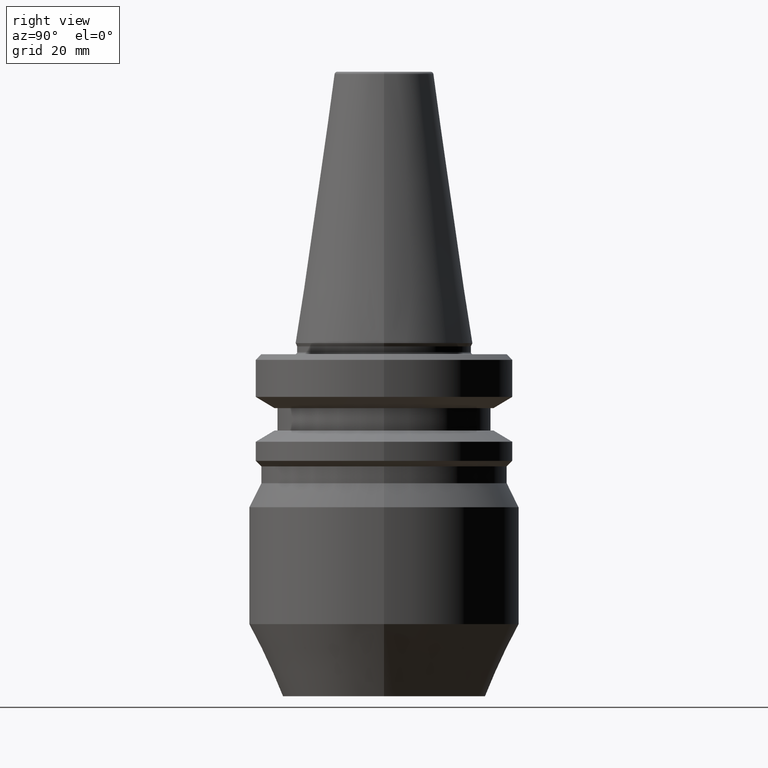
[diagram: clean part render]
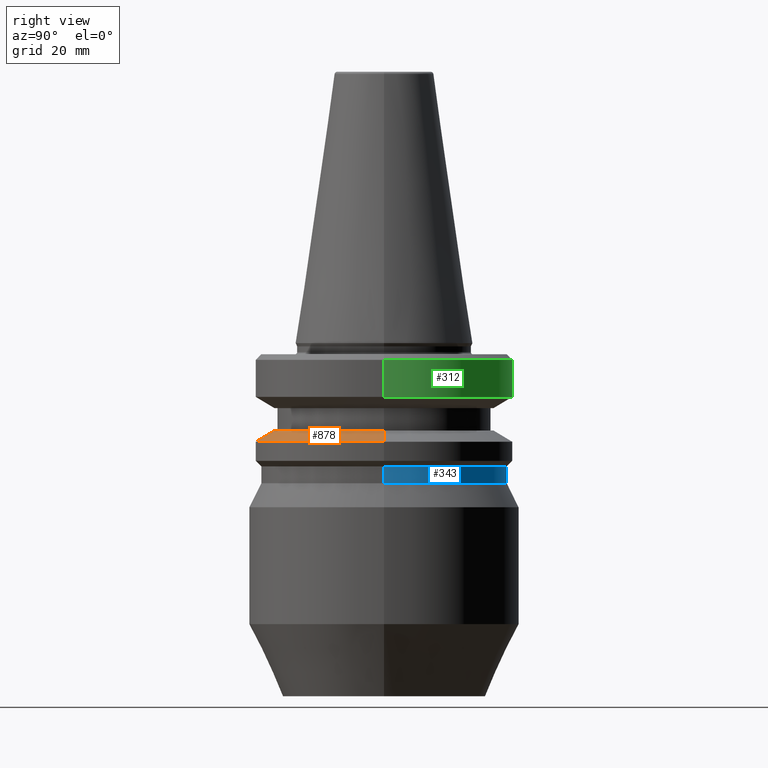
[diagram: same view with three faces highlighted in distinct colors, each labeled with its STEP entity id]
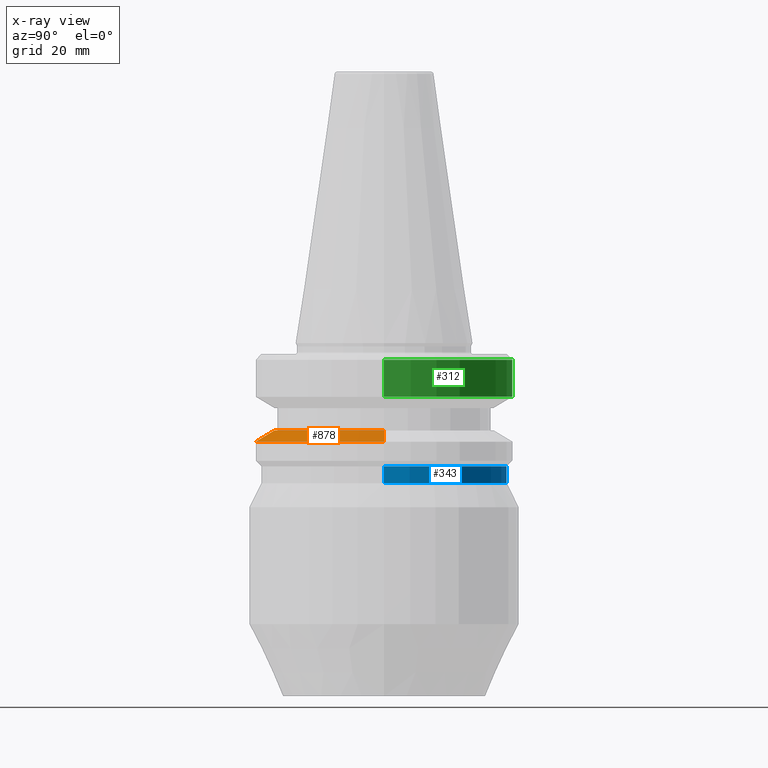
[diagram: x-ray of the same camera — body ghosted, the three highlighted faces saturated]
A machine part, right view with three faces highlighted in distinct colors.
The next image is the same camera in x-ray (body ghosted, the three faces saturated) — at least one of them is partly hidden behind the body in this view.
Their STEP definitions:

[orange] entity #878 — the highlighted conical surface has half-angle 60 deg.
#8 = DIRECTION ( 'NONE',  ( 1.000000000000000000, 0.0000000000000000000, 0.0000000000000000000 ) ) ;
#94 = AXIS2_PLACEMENT_3D ( 'NONE', #138, #861, #352 ) ;
#106 = LINE ( 'NONE', #939, #511 ) ;
#110 = ORIENTED_EDGE ( 'NONE', *, *, #306, .F. ) ;
#111 = CARTESIAN_POINT ( 'NONE',  ( -23.00000000000002100, 0.0000000000000000000, -17.59988266494572100 ) ) ;
#138 = CARTESIAN_POINT ( 'NONE',  ( 0.0000000000000000000, 0.0000000000000000000, -17.59988266494572100 ) ) ;
#142 = AXIS2_PLACEMENT_3D ( 'NONE', #322, #393, #8 ) ;
#254 = DIRECTION ( 'NONE',  ( -0.8660254037844372600, 0.0000000000000000000, -0.5000000000000024400 ) ) ;
#286 = EDGE_CURVE ( 'NONE', #800, #884, #756, .T. ) ;
#306 = EDGE_CURVE ( 'NONE', #582, #820, #328, .T. ) ;
#314 = EDGE_CURVE ( 'NONE', #820, #884, #106, .T. ) ;
#316 = DIRECTION ( 'NONE',  ( -1.000000000000000000, 0.0000000000000000000, 0.0000000000000000000 ) ) ;
#322 = CARTESIAN_POINT ( 'NONE',  ( 0.0000000000000000000, 0.0000000000000000000, -15.59999999999983600 ) ) ;
#328 = CIRCLE ( 'NONE', #142, 19.53610161513752500 ) ;
#334 = CARTESIAN_POINT ( 'NONE',  ( 19.53610161513752500, 2.604585034559237900E-015, -15.59999999999983600 ) ) ;
#352 = DIRECTION ( 'NONE',  ( 1.000000000000000000, 0.0000000000000000000, 0.0000000000000000000 ) ) ;
#373 = ORIENTED_EDGE ( 'NONE', *, *, #286, .T. ) ;
#393 = DIRECTION ( 'NONE',  ( -0.0000000000000000000, -0.0000000000000000000, 1.000000000000000000 ) ) ;
#405 = CARTESIAN_POINT ( 'NONE',  ( -19.53610161513752500, 0.0000000000000000000, -15.59999999999983600 ) ) ;
#407 = LINE ( 'NONE', #111, #589 ) ;
#511 = VECTOR ( 'NONE', #874, 1000.000000000000000 ) ;
#535 = ORIENTED_EDGE ( 'NONE', *, *, #314, .F. ) ;
#582 = VERTEX_POINT ( 'NONE', #405 ) ;
#589 = VECTOR ( 'NONE', #254, 1000.000000000000000 ) ;
#678 = CONICAL_SURFACE ( 'NONE', #754, 23.00000000000002100, 1.047197551196595000 ) ;
#689 = EDGE_LOOP ( 'NONE', ( #535, #110, #972, #373 ) ) ;
#694 = CARTESIAN_POINT ( 'NONE',  ( 23.00000000000002100, 0.0000000000000000000, -17.59988266494572100 ) ) ;
#714 = DIRECTION ( 'NONE',  ( 0.0000000000000000000, 0.0000000000000000000, -1.000000000000000000 ) ) ;
#730 = FACE_OUTER_BOUND ( 'NONE', #689, .T. ) ;
#754 = AXIS2_PLACEMENT_3D ( 'NONE', #929, #714, #316 ) ;
#756 = CIRCLE ( 'NONE', #94, 23.00000000000002100 ) ;
#800 = VERTEX_POINT ( 'NONE', #806 ) ;
#806 = CARTESIAN_POINT ( 'NONE',  ( -23.00000000000002100, 2.816687638038915100E-015, -17.59988266494572100 ) ) ;
#820 = VERTEX_POINT ( 'NONE', #334 ) ;
#861 = DIRECTION ( 'NONE',  ( -0.0000000000000000000, -0.0000000000000000000, 1.000000000000000000 ) ) ;
#874 = DIRECTION ( 'NONE',  ( 0.8660254037844372600, 1.060575238724905200E-016, -0.5000000000000024400 ) ) ;
#878 = ADVANCED_FACE ( 'NONE', ( #730 ), #678, .T. ) ;
#884 = VERTEX_POINT ( 'NONE', #694 ) ;
#929 = CARTESIAN_POINT ( 'NONE',  ( 0.0000000000000000000, 0.0000000000000000000, -17.59988266494572100 ) ) ;
#939 = CARTESIAN_POINT ( 'NONE',  ( 23.00000000000002100, 2.816687638038915100E-015, -17.59988266494572100 ) ) ;
#972 = ORIENTED_EDGE ( 'NONE', *, *, #974, .T. ) ;
#974 = EDGE_CURVE ( 'NONE', #582, #800, #407, .T. ) ;

[blue] entity #343 — the highlighted cylindrical surface (partial cylindrical patch) has radius 22 mm, axis along (-0, -0, 1).
#52 = DIRECTION ( 'NONE',  ( 1.000000000000000000, 0.0000000000000000000, 0.0000000000000000000 ) ) ;
#67 = CIRCLE ( 'NONE', #96, 22.00000000000013100 ) ;
#76 = FACE_OUTER_BOUND ( 'NONE', #904, .T. ) ;
#96 = AXIS2_PLACEMENT_3D ( 'NONE', #908, #387, #886 ) ;
#132 = AXIS2_PLACEMENT_3D ( 'NONE', #136, #1006, #52 ) ;
#136 = CARTESIAN_POINT ( 'NONE',  ( 0.0000000000000000000, 0.0000000000000000000, 80.11315735852554100 ) ) ;
#157 = CARTESIAN_POINT ( 'NONE',  ( 22.00000000000013100, 0.0000000000000000000, 80.11315735852554100 ) ) ;
#178 = CARTESIAN_POINT ( 'NONE',  ( -22.00000000000013100, 2.694222958124193000E-015, -21.99999999999979700 ) ) ;
#193 = AXIS2_PLACEMENT_3D ( 'NONE', #220, #363, #898 ) ;
#198 = VECTOR ( 'NONE', #941, 1000.000000000000000 ) ;
#204 = EDGE_CURVE ( 'NONE', #538, #323, #552, .T. ) ;
#220 = CARTESIAN_POINT ( 'NONE',  ( 0.0000000000000000000, 0.0000000000000000000, -24.99999999999968700 ) ) ;
#244 = CYLINDRICAL_SURFACE ( 'NONE', #132, 22.00000000000013100 ) ;
#274 = VECTOR ( 'NONE', #640, 1000.000000000000000 ) ;
#323 = VERTEX_POINT ( 'NONE', #508 ) ;
#343 = ADVANCED_FACE ( 'NONE', ( #76 ), #244, .T. ) ;
#363 = DIRECTION ( 'NONE',  ( -0.0000000000000000000, -0.0000000000000000000, 1.000000000000000000 ) ) ;
#387 = DIRECTION ( 'NONE',  ( -0.0000000000000000000, -0.0000000000000000000, 1.000000000000000000 ) ) ;
#435 = EDGE_CURVE ( 'NONE', #323, #575, #685, .T. ) ;
#508 = CARTESIAN_POINT ( 'NONE',  ( -22.00000000000013100, 0.0000000000000000000, -24.99999999999968700 ) ) ;
#523 = CARTESIAN_POINT ( 'NONE',  ( 22.00000000000013100, 0.0000000000000000000, -21.99999999999979700 ) ) ;
#538 = VERTEX_POINT ( 'NONE', #743 ) ;
#552 = CIRCLE ( 'NONE', #193, 22.00000000000013100 ) ;
#564 = ORIENTED_EDGE ( 'NONE', *, *, #204, .T. ) ;
#575 = VERTEX_POINT ( 'NONE', #178 ) ;
#580 = ORIENTED_EDGE ( 'NONE', *, *, #590, .F. ) ;
#590 = EDGE_CURVE ( 'NONE', #538, #744, #610, .T. ) ;
#610 = LINE ( 'NONE', #157, #198 ) ;
#640 = DIRECTION ( 'NONE',  ( -0.0000000000000000000, -0.0000000000000000000, 1.000000000000000000 ) ) ;
#654 = ORIENTED_EDGE ( 'NONE', *, *, #919, .F. ) ;
#663 = CARTESIAN_POINT ( 'NONE',  ( -22.00000000000013100, 2.694222958124193000E-015, 80.11315735852554100 ) ) ;
#685 = LINE ( 'NONE', #663, #274 ) ;
#743 = CARTESIAN_POINT ( 'NONE',  ( 22.00000000000013100, 2.816687638038805900E-015, -24.99999999999968700 ) ) ;
#744 = VERTEX_POINT ( 'NONE', #523 ) ;
#886 = DIRECTION ( 'NONE',  ( 1.000000000000000000, 0.0000000000000000000, 0.0000000000000000000 ) ) ;
#898 = DIRECTION ( 'NONE',  ( 1.000000000000000000, 0.0000000000000000000, 0.0000000000000000000 ) ) ;
#904 = EDGE_LOOP ( 'NONE', ( #564, #1007, #654, #580 ) ) ;
#908 = CARTESIAN_POINT ( 'NONE',  ( 0.0000000000000000000, 0.0000000000000000000, -21.99999999999979700 ) ) ;
#919 = EDGE_CURVE ( 'NONE', #744, #575, #67, .T. ) ;
#941 = DIRECTION ( 'NONE',  ( -0.0000000000000000000, -0.0000000000000000000, 1.000000000000000000 ) ) ;
#1006 = DIRECTION ( 'NONE',  ( -0.0000000000000000000, -0.0000000000000000000, 1.000000000000000000 ) ) ;
#1007 = ORIENTED_EDGE ( 'NONE', *, *, #435, .T. ) ;

[green] entity #312 — the highlighted cylindrical surface (partial cylindrical patch) has radius 23 mm, axis along (-0, -0, 1).
#19 = DIRECTION ( 'NONE',  ( 1.000000000000000000, 0.0000000000000000000, 0.0000000000000000000 ) ) ;
#34 = EDGE_LOOP ( 'NONE', ( #269, #571, #444, #601 ) ) ;
#63 = CARTESIAN_POINT ( 'NONE',  ( -23.00000000000002100, 2.816687638038914700E-015, -9.600117335054614300 ) ) ;
#79 = AXIS2_PLACEMENT_3D ( 'NONE', #643, #169, #19 ) ;
#81 = CARTESIAN_POINT ( 'NONE',  ( 23.00000000000002100, 0.0000000000000000000, 80.11315735852554100 ) ) ;
#83 = CARTESIAN_POINT ( 'NONE',  ( -23.00000000000002100, 2.816687638038915100E-015, -2.999999999999891600 ) ) ;
#128 = CIRCLE ( 'NONE', #79, 23.00000000000002100 ) ;
#148 = VERTEX_POINT ( 'NONE', #728 ) ;
#153 = AXIS2_PLACEMENT_3D ( 'NONE', #276, #494, #726 ) ;
#169 = DIRECTION ( 'NONE',  ( -0.0000000000000000000, -0.0000000000000000000, 1.000000000000000000 ) ) ;
#269 = ORIENTED_EDGE ( 'NONE', *, *, #946, .T. ) ;
#276 = CARTESIAN_POINT ( 'NONE',  ( 0.0000000000000000000, 0.0000000000000000000, 80.11315735852554100 ) ) ;
#281 = DIRECTION ( 'NONE',  ( -0.0000000000000000000, -0.0000000000000000000, 1.000000000000000000 ) ) ;
#294 = EDGE_CURVE ( 'NONE', #341, #600, #128, .T. ) ;
#298 = FACE_OUTER_BOUND ( 'NONE', #34, .T. ) ;
#312 = ADVANCED_FACE ( 'NONE', ( #298 ), #910, .T. ) ;
#341 = VERTEX_POINT ( 'NONE', #662 ) ;
#416 = EDGE_CURVE ( 'NONE', #651, #600, #534, .T. ) ;
#444 = ORIENTED_EDGE ( 'NONE', *, *, #294, .F. ) ;
#461 = VECTOR ( 'NONE', #281, 1000.000000000000000 ) ;
#488 = LINE ( 'NONE', #81, #461 ) ;
#494 = DIRECTION ( 'NONE',  ( -0.0000000000000000000, -0.0000000000000000000, 1.000000000000000000 ) ) ;
#530 = AXIS2_PLACEMENT_3D ( 'NONE', #996, #928, #840 ) ;
#534 = LINE ( 'NONE', #650, #912 ) ;
#571 = ORIENTED_EDGE ( 'NONE', *, *, #416, .T. ) ;
#600 = VERTEX_POINT ( 'NONE', #83 ) ;
#601 = ORIENTED_EDGE ( 'NONE', *, *, #671, .F. ) ;
#643 = CARTESIAN_POINT ( 'NONE',  ( 0.0000000000000000000, 0.0000000000000000000, -2.999999999999891600 ) ) ;
#650 = CARTESIAN_POINT ( 'NONE',  ( -23.00000000000002100, 2.816687638038915100E-015, 80.11315735852554100 ) ) ;
#651 = VERTEX_POINT ( 'NONE', #63 ) ;
#662 = CARTESIAN_POINT ( 'NONE',  ( 23.00000000000002100, 0.0000000000000000000, -2.999999999999891600 ) ) ;
#664 = DIRECTION ( 'NONE',  ( -0.0000000000000000000, -0.0000000000000000000, 1.000000000000000000 ) ) ;
#671 = EDGE_CURVE ( 'NONE', #148, #341, #488, .T. ) ;
#726 = DIRECTION ( 'NONE',  ( 1.000000000000000000, 0.0000000000000000000, 0.0000000000000000000 ) ) ;
#728 = CARTESIAN_POINT ( 'NONE',  ( 23.00000000000002100, 0.0000000000000000000, -9.600117335054614300 ) ) ;
#829 = CIRCLE ( 'NONE', #530, 23.00000000000002100 ) ;
#840 = DIRECTION ( 'NONE',  ( 1.000000000000000000, 0.0000000000000000000, 0.0000000000000000000 ) ) ;
#910 = CYLINDRICAL_SURFACE ( 'NONE', #153, 23.00000000000002100 ) ;
#912 = VECTOR ( 'NONE', #664, 1000.000000000000000 ) ;
#928 = DIRECTION ( 'NONE',  ( -0.0000000000000000000, -0.0000000000000000000, 1.000000000000000000 ) ) ;
#946 = EDGE_CURVE ( 'NONE', #148, #651, #829, .T. ) ;
#996 = CARTESIAN_POINT ( 'NONE',  ( 0.0000000000000000000, 0.0000000000000000000, -9.600117335054614300 ) ) ;